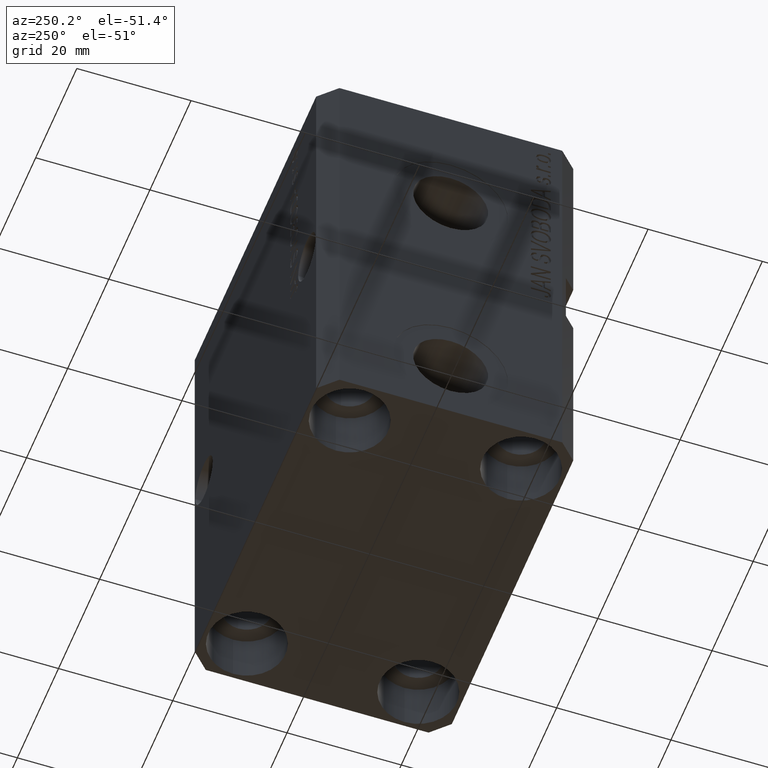
[diagram: clean part render]
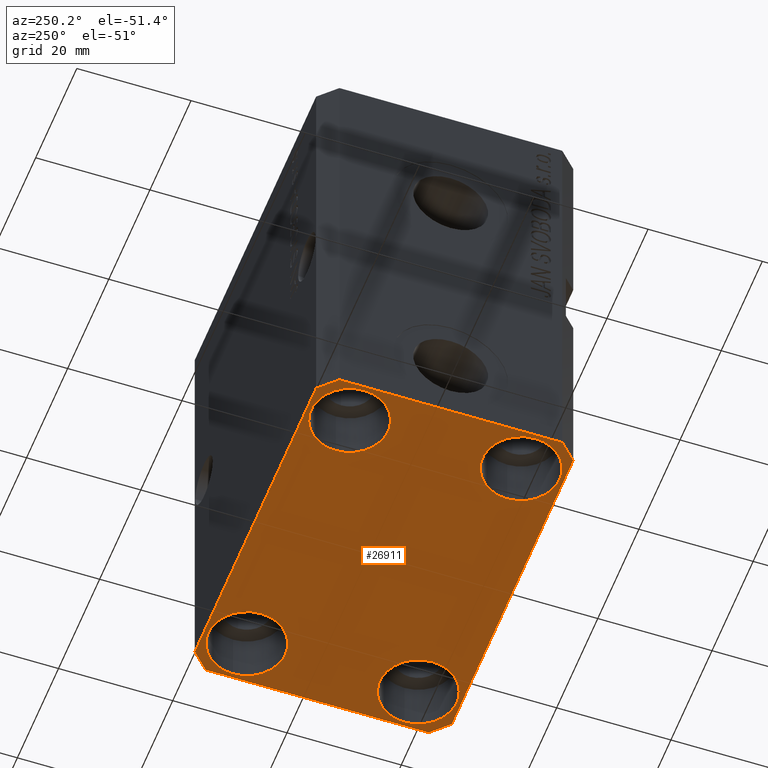
[diagram: same view with one face highlighted and labeled with its STEP entity id]
A machine part, auxiliary view. The second image highlights one B-rep face of the part: STEP entity #26911.
In plain terms, the highlighted planar face has unit normal (0, 0, 1).
Its self-contained STEP definition (entity closure, byte-faithful):
#29 = VECTOR ( 'NONE', #10330, 1000.000000000000000 ) ;
#132 = CARTESIAN_POINT ( 'NONE',  ( 31.74999999997746869, -15.00000000000000000, -77.00000000000000000 ) ) ;
#373 = EDGE_CURVE ( 'NONE', #19948, #24361, #17188, .T. ) ;
#498 = EDGE_CURVE ( 'NONE', #13447, #27139, #20114, .T. ) ;
#642 = AXIS2_PLACEMENT_3D ( 'NONE', #32883, #13084, #43351 ) ;
#1016 = CIRCLE ( 'NONE', #14068, 6.750000000022533087 ) ;
#1678 = CARTESIAN_POINT ( 'NONE',  ( 0.000000000000000000, 0.000000000000000000, -77.00000000000000000 ) ) ;
#1887 = CARTESIAN_POINT ( 'NONE',  ( -32.49999999999650413, -19.49999999999949907, -77.00000000000000000 ) ) ;
#2352 = FACE_BOUND ( 'NONE', #43728, .T. ) ;
#3212 = DIRECTION ( 'NONE',  ( -0.7071067811865352493, 0.7071067811865597852, 0.000000000000000000 ) ) ;
#3602 = CARTESIAN_POINT ( 'NONE',  ( -29.49999999999650413, 22.49999999999949907, -77.00000000000000000 ) ) ;
#4433 = DIRECTION ( 'NONE',  ( 1.000000000000000000, 0.000000000000000000, 0.000000000000000000 ) ) ;
#4489 = CARTESIAN_POINT ( 'NONE',  ( -18.24999999997747224, 15.00000000000000000, -77.00000000000000000 ) ) ;
#4524 = CARTESIAN_POINT ( 'NONE',  ( 32.49999999999702993, 19.49999999999945999, -77.00000000000000000 ) ) ;
#4651 = CARTESIAN_POINT ( 'NONE',  ( -25.00000000000000355, 15.00000000000000000, -77.00000000000000000 ) ) ;
#4695 = EDGE_CURVE ( 'NONE', #27139, #13447, #39142, .T. ) ;
#4907 = DIRECTION ( 'NONE',  ( 1.000000000000000000, 0.000000000000000000, 0.000000000000000000 ) ) ;
#5251 = VERTEX_POINT ( 'NONE', #132 ) ;
#5271 = VERTEX_POINT ( 'NONE', #27620 ) ;
#5531 = FACE_BOUND ( 'NONE', #15089, .T. ) ;
#5759 = FACE_BOUND ( 'NONE', #33063, .T. ) ;
#7125 = CARTESIAN_POINT ( 'NONE',  ( -18.24999999995845812, -15.00000000000000000, -77.00000000000000000 ) ) ;
#7177 = CIRCLE ( 'NONE', #642, 6.749999999977465137 ) ;
#7416 = EDGE_CURVE ( 'NONE', #24361, #19948, #1016, .T. ) ;
#7758 = VECTOR ( 'NONE', #39392, 1000.000000000000114 ) ;
#8201 = CARTESIAN_POINT ( 'NONE',  ( 32.49999999999651124, -19.49999999999949196, -77.00000000000000000 ) ) ;
#8398 = VERTEX_POINT ( 'NONE', #8960 ) ;
#8495 = DIRECTION ( 'NONE',  ( 1.000000000000000000, 0.000000000000000000, 0.000000000000000000 ) ) ;
#8540 = CARTESIAN_POINT ( 'NONE',  ( -25.00000000000000355, -15.00000000000000000, -77.00000000000000000 ) ) ;
#8960 = CARTESIAN_POINT ( 'NONE',  ( -29.49999999999650413, -22.49999999999949907, -77.00000000000000000 ) ) ;
#9871 = DIRECTION ( 'NONE',  ( -0.000000000000000000, -0.000000000000000000, 1.000000000000000000 ) ) ;
#10230 = EDGE_CURVE ( 'NONE', #5251, #5271, #17765, .T. ) ;
#10257 = CARTESIAN_POINT ( 'NONE',  ( 32.49999999999702993, 19.49999999999945999, -77.00000000000000000 ) ) ;
#10313 = LINE ( 'NONE', #30772, #36410 ) ;
#10330 = DIRECTION ( 'NONE',  ( 1.334402673828349134E-14, 1.000000000000000000, 0.000000000000000000 ) ) ;
#10787 = VECTOR ( 'NONE', #25821, 1000.000000000000000 ) ;
#11534 = VECTOR ( 'NONE', #29300, 1000.000000000000000 ) ;
#11717 = ORIENTED_EDGE ( 'NONE', *, *, #373, .T. ) ;
#11918 = CARTESIAN_POINT ( 'NONE',  ( 29.49999999999650413, -22.49999999999949196, -77.00000000000000000 ) ) ;
#11964 = LINE ( 'NONE', #12429, #10787 ) ;
#12117 = PLANE ( 'NONE',  #37759 ) ;
#12126 = ORIENTED_EDGE ( 'NONE', *, *, #20003, .T. ) ;
#12429 = CARTESIAN_POINT ( 'NONE',  ( -32.49999999999650413, 19.49999999999949907, -77.00000000000000000 ) ) ;
#12987 = AXIS2_PLACEMENT_3D ( 'NONE', #40735, #27059, #23436 ) ;
#13084 = DIRECTION ( 'NONE',  ( -0.000000000000000000, -0.000000000000000000, 1.000000000000000000 ) ) ;
#13447 = VERTEX_POINT ( 'NONE', #43512 ) ;
#13499 = DIRECTION ( 'NONE',  ( 1.000000000000000000, 0.000000000000000000, 0.000000000000000000 ) ) ;
#14068 = AXIS2_PLACEMENT_3D ( 'NONE', #31924, #38965, #8495 ) ;
#14628 = CARTESIAN_POINT ( 'NONE',  ( -32.49999999999650413, 19.49999999999949907, -77.00000000000000000 ) ) ;
#15022 = AXIS2_PLACEMENT_3D ( 'NONE', #24551, #28402, #27728 ) ;
#15089 = EDGE_LOOP ( 'NONE', ( #27618, #20562 ) ) ;
#15759 = FACE_OUTER_BOUND ( 'NONE', #28949, .T. ) ;
#15776 = VECTOR ( 'NONE', #32003, 1000.000000000000114 ) ;
#15989 = CARTESIAN_POINT ( 'NONE',  ( -31.75000000004154899, -15.00000000000000000, -77.00000000000000000 ) ) ;
#16157 = DIRECTION ( 'NONE',  ( -0.000000000000000000, -0.000000000000000000, 1.000000000000000000 ) ) ;
#16286 = VERTEX_POINT ( 'NONE', #4524 ) ;
#16857 = LINE ( 'NONE', #10257, #39051 ) ;
#17188 = CIRCLE ( 'NONE', #44091, 6.750000000022533087 ) ;
#17601 = ORIENTED_EDGE ( 'NONE', *, *, #23130, .F. ) ;
#17765 = CIRCLE ( 'NONE', #23592, 6.749999999977465137 ) ;
#17992 = CARTESIAN_POINT ( 'NONE',  ( 29.49999999999707967, 22.49999999999951328, -77.00000000000000000 ) ) ;
#18486 = EDGE_LOOP ( 'NONE', ( #11717, #34000 ) ) ;
#18746 = EDGE_CURVE ( 'NONE', #35718, #35316, #21302, .T. ) ;
#19135 = VERTEX_POINT ( 'NONE', #15989 ) ;
#19605 = DIRECTION ( 'NONE',  ( 0.000000000000000000, 0.000000000000000000, 1.000000000000000000 ) ) ;
#19826 = ORIENTED_EDGE ( 'NONE', *, *, #30709, .F. ) ;
#19948 = VERTEX_POINT ( 'NONE', #39691 ) ;
#20003 = EDGE_CURVE ( 'NONE', #20063, #19135, #43409, .T. ) ;
#20063 = VERTEX_POINT ( 'NONE', #7125 ) ;
#20099 = CARTESIAN_POINT ( 'NONE',  ( -25.00000000000000355, -15.00000000000000000, -77.00000000000000000 ) ) ;
#20114 = CIRCLE ( 'NONE', #15022, 6.749999999958452790 ) ;
#20419 = CARTESIAN_POINT ( 'NONE',  ( -29.49999999999650413, -22.49999999999949907, -77.00000000000000000 ) ) ;
#20460 = ORIENTED_EDGE ( 'NONE', *, *, #41850, .F. ) ;
#20562 = ORIENTED_EDGE ( 'NONE', *, *, #10230, .T. ) ;
#21302 = LINE ( 'NONE', #3602, #15776 ) ;
#22637 = CARTESIAN_POINT ( 'NONE',  ( -32.49999999999650413, -19.49999999999949907, -77.00000000000000000 ) ) ;
#23130 = EDGE_CURVE ( 'NONE', #35316, #35057, #11964, .T. ) ;
#23193 = DIRECTION ( 'NONE',  ( 1.000000000000000000, 0.000000000000000000, 0.000000000000000000 ) ) ;
#23387 = EDGE_CURVE ( 'NONE', #28276, #24111, #43653, .T. ) ;
#23436 = DIRECTION ( 'NONE',  ( 1.000000000000000000, 0.000000000000000000, 0.000000000000000000 ) ) ;
#23592 = AXIS2_PLACEMENT_3D ( 'NONE', #33439, #16157, #23193 ) ;
#24111 = VERTEX_POINT ( 'NONE', #36586 ) ;
#24361 = VERTEX_POINT ( 'NONE', #4489 ) ;
#24484 = AXIS2_PLACEMENT_3D ( 'NONE', #20099, #9871, #13499 ) ;
#24551 = CARTESIAN_POINT ( 'NONE',  ( 24.99999999999999645, 15.00000000000000888, -77.00000000000000000 ) ) ;
#25821 = DIRECTION ( 'NONE',  ( 0.000000000000000000, -1.000000000000000000, 0.000000000000000000 ) ) ;
#26595 = CARTESIAN_POINT ( 'NONE',  ( 18.25000000004154543, 15.00000000000000888, -77.00000000000000000 ) ) ;
#26911 = ADVANCED_FACE ( 'NONE', ( #2352, #5531, #5759, #40767, #15759 ), #12117, .F. ) ;
#27059 = DIRECTION ( 'NONE',  ( -0.000000000000000000, -0.000000000000000000, 1.000000000000000000 ) ) ;
#27139 = VERTEX_POINT ( 'NONE', #26595 ) ;
#27618 = ORIENTED_EDGE ( 'NONE', *, *, #44239, .T. ) ;
#27620 = CARTESIAN_POINT ( 'NONE',  ( 18.25000000002253842, -15.00000000000000000, -77.00000000000000000 ) ) ;
#27728 = DIRECTION ( 'NONE',  ( 1.000000000000000000, 0.000000000000000000, 0.000000000000000000 ) ) ;
#27789 = EDGE_CURVE ( 'NONE', #24111, #16286, #35713, .T. ) ;
#27807 = ORIENTED_EDGE ( 'NONE', *, *, #27789, .F. ) ;
#28276 = VERTEX_POINT ( 'NONE', #11918 ) ;
#28287 = DIRECTION ( 'NONE',  ( -0.000000000000000000, -0.000000000000000000, 1.000000000000000000 ) ) ;
#28402 = DIRECTION ( 'NONE',  ( -0.000000000000000000, -0.000000000000000000, 1.000000000000000000 ) ) ;
#28949 = EDGE_LOOP ( 'NONE', ( #19826, #20460, #27807, #29872, #41457, #41218, #17601, #40321 ) ) ;
#29300 = DIRECTION ( 'NONE',  ( 0.7071067811865483499, 0.7071067811865466846, 0.000000000000000000 ) ) ;
#29872 = ORIENTED_EDGE ( 'NONE', *, *, #23387, .F. ) ;
#29971 = CARTESIAN_POINT ( 'NONE',  ( -29.49999999999650413, 22.49999999999949907, -77.00000000000000000 ) ) ;
#30709 = EDGE_CURVE ( 'NONE', #33902, #35718, #10313, .T. ) ;
#30772 = CARTESIAN_POINT ( 'NONE',  ( 29.49999999999707967, 22.49999999999951328, -77.00000000000000000 ) ) ;
#31924 = CARTESIAN_POINT ( 'NONE',  ( -25.00000000000000355, 15.00000000000000000, -77.00000000000000000 ) ) ;
#32003 = DIRECTION ( 'NONE',  ( -0.7071067811865474617, -0.7071067811865474617, 0.000000000000000000 ) ) ;
#32156 = AXIS2_PLACEMENT_3D ( 'NONE', #8540, #32407, #4907 ) ;
#32407 = DIRECTION ( 'NONE',  ( -0.000000000000000000, -0.000000000000000000, 1.000000000000000000 ) ) ;
#32428 = ORIENTED_EDGE ( 'NONE', *, *, #4695, .T. ) ;
#32883 = CARTESIAN_POINT ( 'NONE',  ( 25.00000000000000355, -15.00000000000000000, -77.00000000000000000 ) ) ;
#32895 = ORIENTED_EDGE ( 'NONE', *, *, #35080, .T. ) ;
#33063 = EDGE_LOOP ( 'NONE', ( #32428, #44473 ) ) ;
#33439 = CARTESIAN_POINT ( 'NONE',  ( 25.00000000000000355, -15.00000000000000000, -77.00000000000000000 ) ) ;
#33534 = DIRECTION ( 'NONE',  ( -1.000000000000000000, -2.352167425053553784E-16, 0.000000000000000000 ) ) ;
#33902 = VERTEX_POINT ( 'NONE', #17992 ) ;
#34000 = ORIENTED_EDGE ( 'NONE', *, *, #7416, .T. ) ;
#34961 = DIRECTION ( 'NONE',  ( 1.000000000000000000, 1.176083712526788232E-16, 0.000000000000000000 ) ) ;
#35057 = VERTEX_POINT ( 'NONE', #22637 ) ;
#35080 = EDGE_CURVE ( 'NONE', #19135, #20063, #43812, .T. ) ;
#35316 = VERTEX_POINT ( 'NONE', #14628 ) ;
#35713 = LINE ( 'NONE', #8201, #29 ) ;
#35718 = VERTEX_POINT ( 'NONE', #29971 ) ;
#36410 = VECTOR ( 'NONE', #33534, 1000.000000000000000 ) ;
#36586 = CARTESIAN_POINT ( 'NONE',  ( 32.49999999999651124, -19.49999999999949196, -77.00000000000000000 ) ) ;
#37039 = CARTESIAN_POINT ( 'NONE',  ( 29.49999999999650413, -22.49999999999949196, -77.00000000000000000 ) ) ;
#37759 = AXIS2_PLACEMENT_3D ( 'NONE', #1678, #19605, #40546 ) ;
#38772 = EDGE_CURVE ( 'NONE', #8398, #28276, #41583, .T. ) ;
#38965 = DIRECTION ( 'NONE',  ( -0.000000000000000000, -0.000000000000000000, 1.000000000000000000 ) ) ;
#39051 = VECTOR ( 'NONE', #3212, 1000.000000000000000 ) ;
#39142 = CIRCLE ( 'NONE', #12987, 6.749999999958452790 ) ;
#39182 = EDGE_CURVE ( 'NONE', #35057, #8398, #43502, .T. ) ;
#39392 = DIRECTION ( 'NONE',  ( 0.7071067811865474617, -0.7071067811865474617, 0.000000000000000000 ) ) ;
#39691 = CARTESIAN_POINT ( 'NONE',  ( -31.75000000002253842, 15.00000000000000000, -77.00000000000000000 ) ) ;
#39722 = VECTOR ( 'NONE', #34961, 1000.000000000000000 ) ;
#40321 = ORIENTED_EDGE ( 'NONE', *, *, #18746, .F. ) ;
#40546 = DIRECTION ( 'NONE',  ( 1.000000000000000000, 0.000000000000000000, -0.000000000000000000 ) ) ;
#40735 = CARTESIAN_POINT ( 'NONE',  ( 24.99999999999999645, 15.00000000000000888, -77.00000000000000000 ) ) ;
#40767 = FACE_BOUND ( 'NONE', #18486, .T. ) ;
#41218 = ORIENTED_EDGE ( 'NONE', *, *, #39182, .F. ) ;
#41457 = ORIENTED_EDGE ( 'NONE', *, *, #38772, .F. ) ;
#41583 = LINE ( 'NONE', #20419, #39722 ) ;
#41850 = EDGE_CURVE ( 'NONE', #16286, #33902, #16857, .T. ) ;
#43351 = DIRECTION ( 'NONE',  ( 1.000000000000000000, 0.000000000000000000, 0.000000000000000000 ) ) ;
#43409 = CIRCLE ( 'NONE', #24484, 6.750000000041541881 ) ;
#43502 = LINE ( 'NONE', #1887, #7758 ) ;
#43512 = CARTESIAN_POINT ( 'NONE',  ( 31.74999999995845101, 15.00000000000000888, -77.00000000000000000 ) ) ;
#43653 = LINE ( 'NONE', #37039, #11534 ) ;
#43728 = EDGE_LOOP ( 'NONE', ( #32895, #12126 ) ) ;
#43812 = CIRCLE ( 'NONE', #32156, 6.750000000041541881 ) ;
#44091 = AXIS2_PLACEMENT_3D ( 'NONE', #4651, #28287, #4433 ) ;
#44239 = EDGE_CURVE ( 'NONE', #5271, #5251, #7177, .T. ) ;
#44473 = ORIENTED_EDGE ( 'NONE', *, *, #498, .T. ) ;